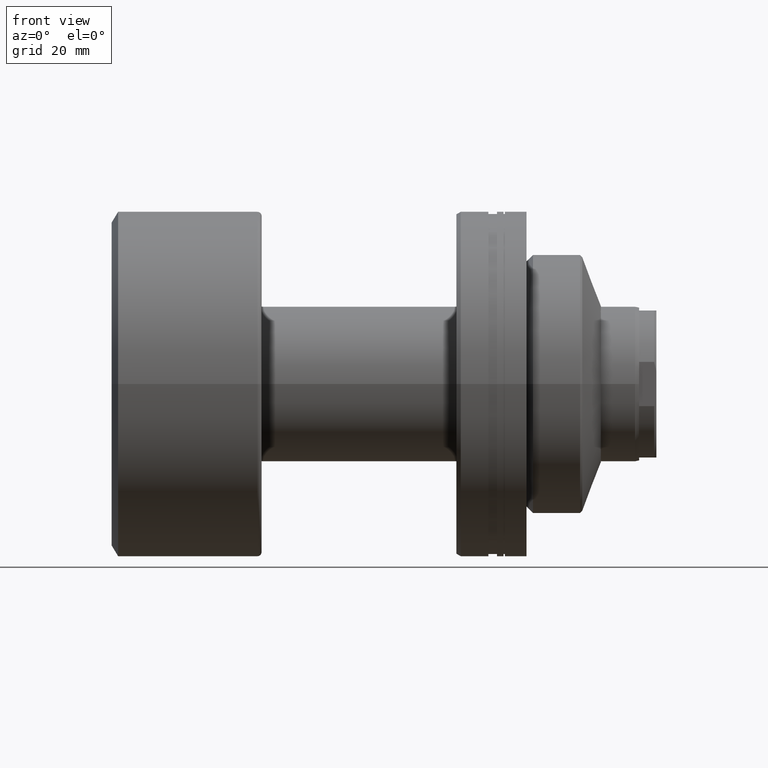
[diagram: clean part render]
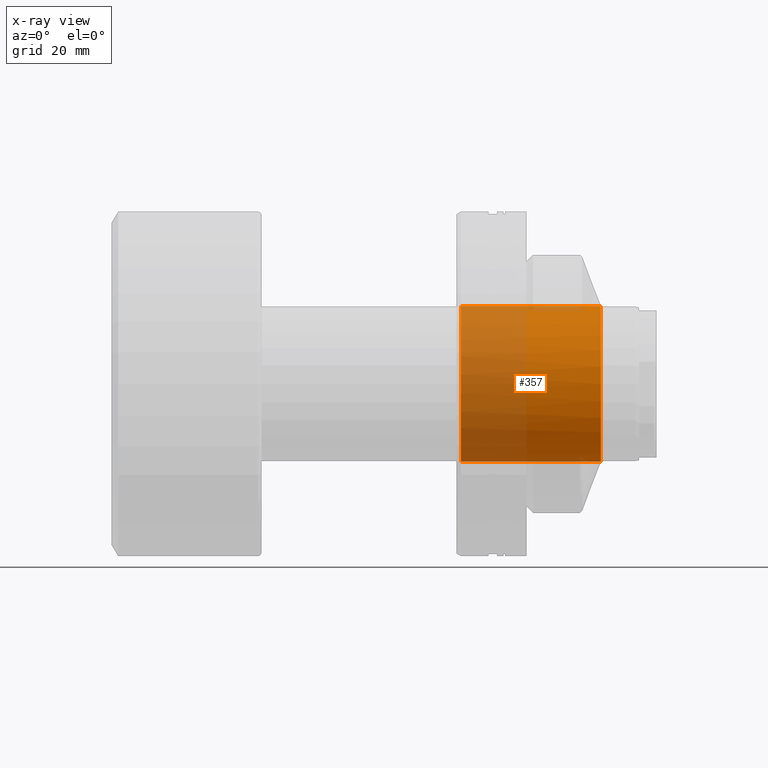
[diagram: x-ray — body ghosted, one internal face saturated and labeled with its STEP entity id]
A machine part, front view, then the same camera in x-ray: the body is ghosted and one INTERNAL B-rep face — a face not visible from any outside direction — is saturated and labeled: STEP entity #357.
In plain terms, the highlighted cylindrical surface (partial cylindrical patch) has radius 18 mm, axis along (1, 0, 0).
Its self-contained STEP definition (entity closure, byte-faithful):
#17 = DIRECTION ( 'NONE',  ( 0.000000000000000000, 0.000000000000000000, -1.000000000000000000 ) ) ;
#70 = DIRECTION ( 'NONE',  ( 1.000000000000000000, -0.000000000000000000, -0.000000000000000000 ) ) ;
#75 = EDGE_CURVE ( 'NONE', #756, #1604, #1099, .T. ) ;
#164 = EDGE_LOOP ( 'NONE', ( #559, #1139, #401, #712, #290 ) ) ;
#269 = EDGE_CURVE ( 'NONE', #2253, #1604, #398, .T. ) ;
#290 = ORIENTED_EDGE ( 'NONE', *, *, #502, .F. ) ;
#322 = DIRECTION ( 'NONE',  ( 3.854941057726238097E-16, -1.000000000000000000, 0.000000000000000000 ) ) ;
#357 = ADVANCED_FACE ( 'NONE', ( #928 ), #1948, .F. ) ;
#384 = DIRECTION ( 'NONE',  ( 1.000000000000000000, -0.000000000000000000, -0.000000000000000000 ) ) ;
#398 = CIRCLE ( 'NONE', #1922, 18.00000000000000000 ) ;
#401 = ORIENTED_EDGE ( 'NONE', *, *, #269, .F. ) ;
#497 = AXIS2_PLACEMENT_3D ( 'NONE', #1204, #1580, #1594 ) ;
#502 = EDGE_CURVE ( 'NONE', #1513, #629, #984, .T. ) ;
#556 = CARTESIAN_POINT ( 'NONE',  ( -6.772881355932611314, -17.99999999999998934, 0.000000000000000000 ) ) ;
#559 = ORIENTED_EDGE ( 'NONE', *, *, #1500, .T. ) ;
#629 = VERTEX_POINT ( 'NONE', #1409 ) ;
#654 = CIRCLE ( 'NONE', #497, 18.00000000000000000 ) ;
#712 = ORIENTED_EDGE ( 'NONE', *, *, #2213, .F. ) ;
#742 = VECTOR ( 'NONE', #70, 1000.000000000000000 ) ;
#756 = VERTEX_POINT ( 'NONE', #1378 ) ;
#794 = DIRECTION ( 'NONE',  ( 0.000000000000000000, 0.000000000000000000, -1.000000000000000000 ) ) ;
#849 = VECTOR ( 'NONE', #1529, 1000.000000000000000 ) ;
#912 = CARTESIAN_POINT ( 'NONE',  ( -91.11168824543142364, 0.000000000000000000, 0.000000000000000000 ) ) ;
#928 = FACE_OUTER_BOUND ( 'NONE', #164, .T. ) ;
#944 = CARTESIAN_POINT ( 'NONE',  ( -39.19999999999999574, 0.000000000000000000, -18.00000000000000000 ) ) ;
#984 = LINE ( 'NONE', #1836, #849 ) ;
#1019 = CARTESIAN_POINT ( 'NONE',  ( -6.772881355932618419, 8.787314973116373205E-15, 0.000000000000000000 ) ) ;
#1099 = LINE ( 'NONE', #1848, #742 ) ;
#1123 = DIRECTION ( 'NONE',  ( -1.000000000000000000, 0.000000000000000000, 0.000000000000000000 ) ) ;
#1139 = ORIENTED_EDGE ( 'NONE', *, *, #75, .T. ) ;
#1204 = CARTESIAN_POINT ( 'NONE',  ( -6.772881355932618419, 8.787314973116373205E-15, 0.000000000000000000 ) ) ;
#1378 = CARTESIAN_POINT ( 'NONE',  ( -39.19999999999999574, 2.204364238465235033E-15, 18.00000000000000000 ) ) ;
#1409 = CARTESIAN_POINT ( 'NONE',  ( -6.772881355932618419, 4.622231866529366047E-30, -18.00000000000000000 ) ) ;
#1500 = EDGE_CURVE ( 'NONE', #1513, #756, #2008, .T. ) ;
#1513 = VERTEX_POINT ( 'NONE', #944 ) ;
#1529 = DIRECTION ( 'NONE',  ( 1.000000000000000000, -0.000000000000000000, -0.000000000000000000 ) ) ;
#1580 = DIRECTION ( 'NONE',  ( -1.000000000000000000, -3.738146982434194072E-16, 0.000000000000000000 ) ) ;
#1594 = DIRECTION ( 'NONE',  ( 3.854941057726238097E-16, -1.000000000000000000, 0.000000000000000000 ) ) ;
#1604 = VERTEX_POINT ( 'NONE', #1741 ) ;
#1646 = AXIS2_PLACEMENT_3D ( 'NONE', #2002, #1123, #794 ) ;
#1725 = AXIS2_PLACEMENT_3D ( 'NONE', #912, #384, #17 ) ;
#1741 = CARTESIAN_POINT ( 'NONE',  ( -6.772881355932618419, 2.204364238465240161E-15, 18.00000000000000000 ) ) ;
#1836 = CARTESIAN_POINT ( 'NONE',  ( -91.11168824543142364, 0.000000000000000000, -18.00000000000000000 ) ) ;
#1848 = CARTESIAN_POINT ( 'NONE',  ( -91.11168824543142364, 2.204364238465235033E-15, 18.00000000000000000 ) ) ;
#1922 = AXIS2_PLACEMENT_3D ( 'NONE', #1019, #1925, #322 ) ;
#1925 = DIRECTION ( 'NONE',  ( -1.000000000000000000, -3.738146982434194072E-16, 0.000000000000000000 ) ) ;
#1948 = CYLINDRICAL_SURFACE ( 'NONE', #1725, 18.00000000000000000 ) ;
#2002 = CARTESIAN_POINT ( 'NONE',  ( -39.19999999999999574, 0.000000000000000000, 0.000000000000000000 ) ) ;
#2008 = CIRCLE ( 'NONE', #1646, 18.00000000000000000 ) ;
#2213 = EDGE_CURVE ( 'NONE', #629, #2253, #654, .T. ) ;
#2253 = VERTEX_POINT ( 'NONE', #556 ) ;